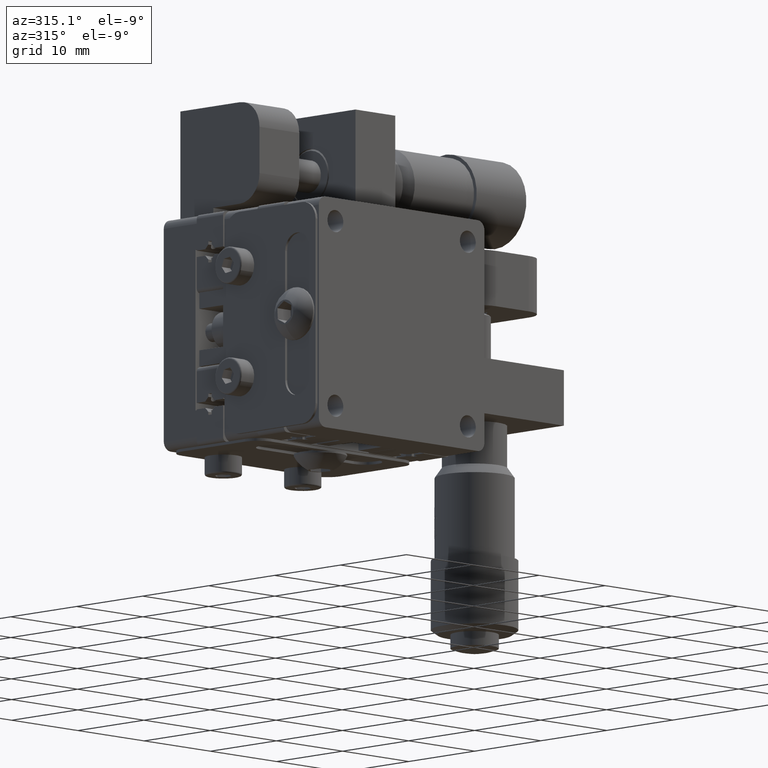
[diagram: clean part render]
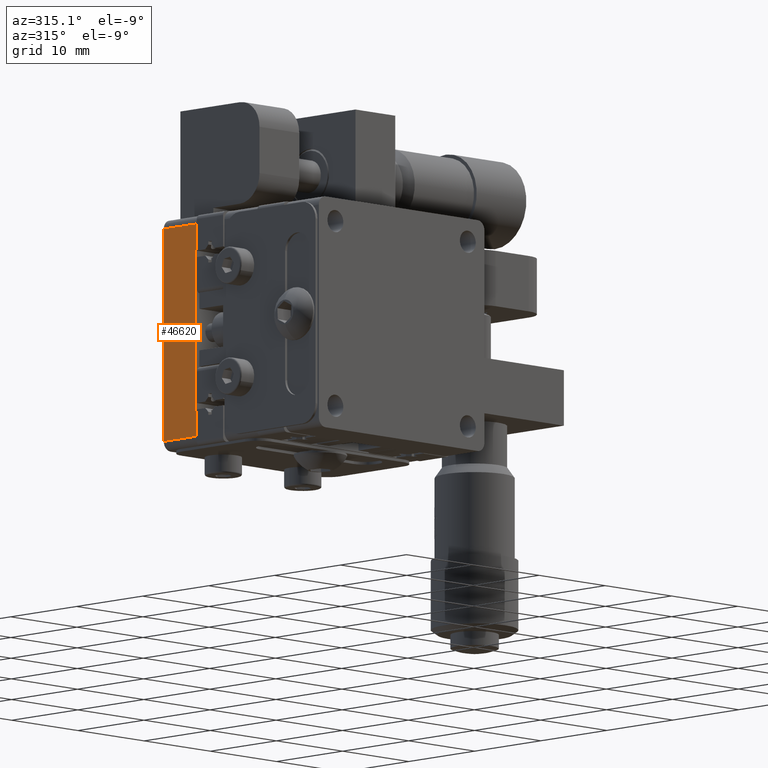
[diagram: same view with one face highlighted and labeled with its STEP entity id]
A machine part, auxiliary view. The second image highlights one B-rep face of the part: STEP entity #46620.
In plain terms, the highlighted planar face has unit normal (-1, 0, 0).
Its self-contained STEP definition (entity closure, byte-faithful):
#480 = EDGE_CURVE ( 'NONE', #8379, #82890, #28067, .T. ) ;
#1386 = EDGE_CURVE ( 'NONE', #82811, #2538, #58725, .T. ) ;
#1525 = DIRECTION ( 'NONE',  ( 3.330669073875470100E-016, 5.856618871675882000E-016, 1.000000000000000000 ) ) ;
#1818 = CARTESIAN_POINT ( 'NONE',  ( -12.49999999999993400, 9.400000000000000400, 11.49999999999996800 ) ) ;
#2538 = VERTEX_POINT ( 'NONE', #47926 ) ;
#8128 = ORIENTED_EDGE ( 'NONE', *, *, #480, .T. ) ;
#8379 = VERTEX_POINT ( 'NONE', #74443 ) ;
#9423 = DIRECTION ( 'NONE',  ( -1.000000000000000000, 1.266761830690952400E-015, 3.330669073875462700E-016 ) ) ;
#12485 = CARTESIAN_POINT ( 'NONE',  ( -12.49999999999994100, 9.599999999999989000, -8.700000000000024200 ) ) ;
#12938 = CARTESIAN_POINT ( 'NONE',  ( -12.49999999999993400, 14.39999999999998600, -11.50000000000004600 ) ) ;
#15604 = EDGE_CURVE ( 'NONE', #40105, #42925, #92986, .T. ) ;
#22471 = EDGE_CURVE ( 'NONE', #75207, #42925, #36059, .T. ) ;
#23431 = DIRECTION ( 'NONE',  ( 3.330669073875468100E-016, 4.468840090894436400E-016, 1.000000000000000000 ) ) ;
#24741 = CARTESIAN_POINT ( 'NONE',  ( -12.49999999999993400, 9.400000000000002100, 12.49999999999997000 ) ) ;
#26242 = CARTESIAN_POINT ( 'NONE',  ( -12.49999999999994100, 9.399999999999987900, -8.700000000000024200 ) ) ;
#28067 = LINE ( 'NONE', #36060, #64067 ) ;
#28435 = DIRECTION ( 'NONE',  ( -1.266761830690952200E-015, -1.000000000000000000, 4.468840090894440300E-016 ) ) ;
#32631 = ORIENTED_EDGE ( 'NONE', *, *, #60990, .T. ) ;
#34625 = EDGE_LOOP ( 'NONE', ( #60213, #70816, #35344, #56206, #32631, #8128, #79616, #49803 ) ) ;
#35344 = ORIENTED_EDGE ( 'NONE', *, *, #1386, .T. ) ;
#36059 = LINE ( 'NONE', #66600, #91869 ) ;
#36060 = CARTESIAN_POINT ( 'NONE',  ( -12.49999999999992700, 14.40000000000000400, 12.49999999999995400 ) ) ;
#36311 = DIRECTION ( 'NONE',  ( -1.266761830690952200E-015, -1.000000000000000000, 5.856618871675886000E-016 ) ) ;
#38560 = VECTOR ( 'NONE', #90308, 1000.000000000000000 ) ;
#38941 = EDGE_CURVE ( 'NONE', #82811, #75207, #58988, .T. ) ;
#40105 = VERTEX_POINT ( 'NONE', #57928 ) ;
#41363 = VECTOR ( 'NONE', #36311, 1000.000000000000000 ) ;
#42925 = VERTEX_POINT ( 'NONE', #26242 ) ;
#46620 = ADVANCED_FACE ( 'NONE', ( #86054 ), #67847, .T. ) ;
#46703 = CARTESIAN_POINT ( 'NONE',  ( -12.49999999999992700, 14.40000000000000000, 11.49999999999995400 ) ) ;
#47926 = CARTESIAN_POINT ( 'NONE',  ( -12.49999999999993400, 9.399999999999998600, 8.699999999999978000 ) ) ;
#48763 = EDGE_CURVE ( 'NONE', #82890, #40105, #71573, .T. ) ;
#49803 = ORIENTED_EDGE ( 'NONE', *, *, #15604, .T. ) ;
#52168 = CARTESIAN_POINT ( 'NONE',  ( -12.49999999999993400, 9.600000000000001400, 8.699999999999978000 ) ) ;
#53339 = EDGE_CURVE ( 'NONE', #2538, #71152, #87344, .T. ) ;
#53818 = CARTESIAN_POINT ( 'NONE',  ( -12.49999999999993400, 9.400000000000002100, 12.49999999999997000 ) ) ;
#54560 = VECTOR ( 'NONE', #1525, 1000.000000000000000 ) ;
#56206 = ORIENTED_EDGE ( 'NONE', *, *, #53339, .T. ) ;
#57928 = CARTESIAN_POINT ( 'NONE',  ( -12.49999999999994100, 9.399999999999986100, -11.50000000000003000 ) ) ;
#58725 = LINE ( 'NONE', #52168, #41363 ) ;
#58988 = LINE ( 'NONE', #73808, #91574 ) ;
#60213 = ORIENTED_EDGE ( 'NONE', *, *, #22471, .F. ) ;
#60990 = EDGE_CURVE ( 'NONE', #71152, #8379, #94559, .T. ) ;
#64067 = VECTOR ( 'NONE', #94809, 1000.000000000000000 ) ;
#66600 = CARTESIAN_POINT ( 'NONE',  ( -12.49999999999994100, 9.599999999999989000, -8.700000000000024200 ) ) ;
#67026 = DIRECTION ( 'NONE',  ( -3.330669073875470100E-016, -5.964291363288235400E-016, -1.000000000000000000 ) ) ;
#67847 = PLANE ( 'NONE',  #89124 ) ;
#68068 = DIRECTION ( 'NONE',  ( 1.266761830690952200E-015, 1.000000000000000000, -4.468840090894440300E-016 ) ) ;
#70816 = ORIENTED_EDGE ( 'NONE', *, *, #38941, .F. ) ;
#71152 = VERTEX_POINT ( 'NONE', #1818 ) ;
#71573 = LINE ( 'NONE', #95625, #77357 ) ;
#73808 = CARTESIAN_POINT ( 'NONE',  ( -12.49999999999994100, 9.599999999999989000, -8.700000000000024200 ) ) ;
#74443 = CARTESIAN_POINT ( 'NONE',  ( -12.49999999999992700, 14.40000000000000000, 11.49999999999995400 ) ) ;
#75207 = VERTEX_POINT ( 'NONE', #12485 ) ;
#75644 = CARTESIAN_POINT ( 'NONE',  ( -12.49999999999993400, 11.89999999999999100, -2.923009057020920600E-014 ) ) ;
#77357 = VECTOR ( 'NONE', #28435, 1000.000000000000000 ) ;
#79126 = CARTESIAN_POINT ( 'NONE',  ( -12.49999999999993400, 9.600000000000001400, 8.699999999999978000 ) ) ;
#79616 = ORIENTED_EDGE ( 'NONE', *, *, #48763, .T. ) ;
#82811 = VERTEX_POINT ( 'NONE', #79126 ) ;
#82890 = VERTEX_POINT ( 'NONE', #12938 ) ;
#86054 = FACE_OUTER_BOUND ( 'NONE', #34625, .T. ) ;
#87344 = LINE ( 'NONE', #24741, #38560 ) ;
#87536 = VECTOR ( 'NONE', #68068, 1000.000000000000000 ) ;
#89124 = AXIS2_PLACEMENT_3D ( 'NONE', #75644, #9423, #23431 ) ;
#90308 = DIRECTION ( 'NONE',  ( 3.330669073875470100E-016, 5.856618871675882000E-016, 1.000000000000000000 ) ) ;
#91574 = VECTOR ( 'NONE', #67026, 1000.000000000000000 ) ;
#91869 = VECTOR ( 'NONE', #96197, 1000.000000000000000 ) ;
#92986 = LINE ( 'NONE', #53818, #54560 ) ;
#94559 = LINE ( 'NONE', #46703, #87536 ) ;
#94809 = DIRECTION ( 'NONE',  ( -3.330669073875470100E-016, -5.856618871675882000E-016, -1.000000000000000000 ) ) ;
#95625 = CARTESIAN_POINT ( 'NONE',  ( -12.49999999999994100, 9.399999999999986100, -11.50000000000003000 ) ) ;
#96197 = DIRECTION ( 'NONE',  ( -1.266761830690952200E-015, -1.000000000000000000, 5.856618871675886000E-016 ) ) ;